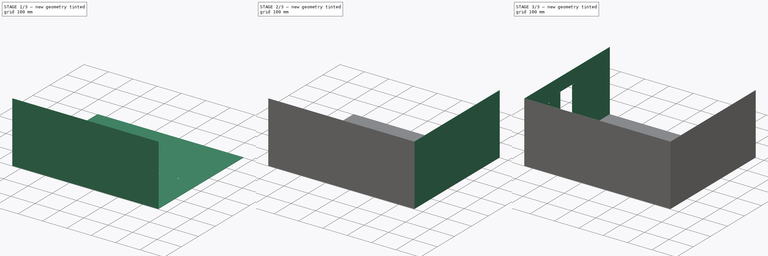
[diagram: build sequence overview — one tinted view per stage of 3, left to right]
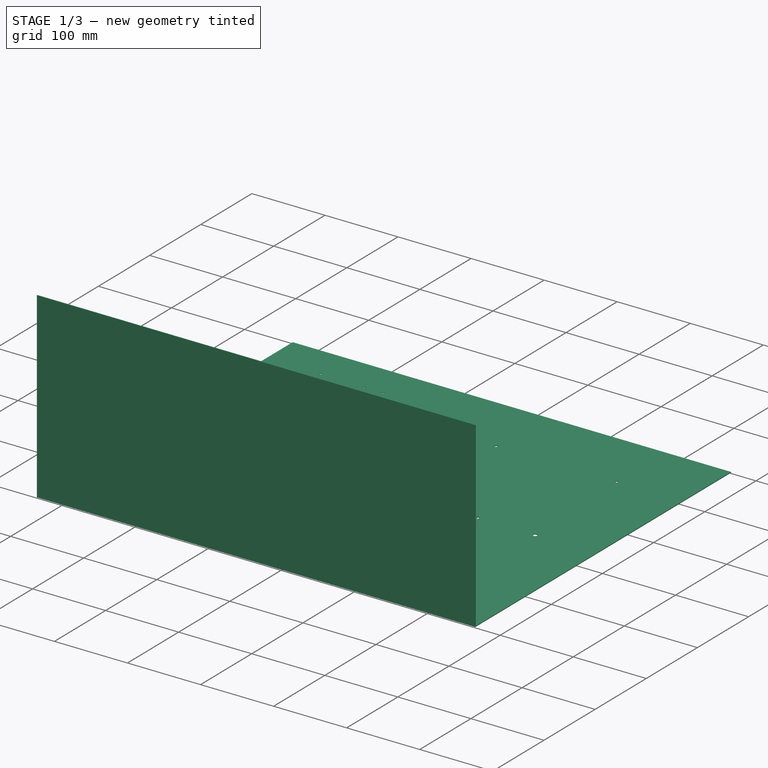
[diagram: stage 1 of 3 — iso view after this stage's code; geometry added in this stage tinted green]
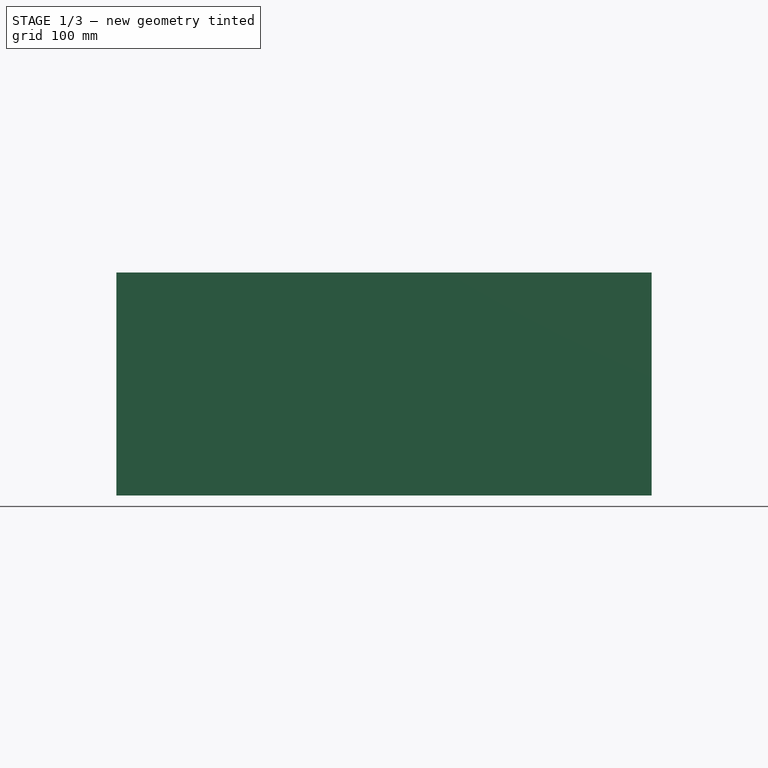
[diagram: stage 1 of 3 — front view after this stage's code; geometry added in this stage tinted green]
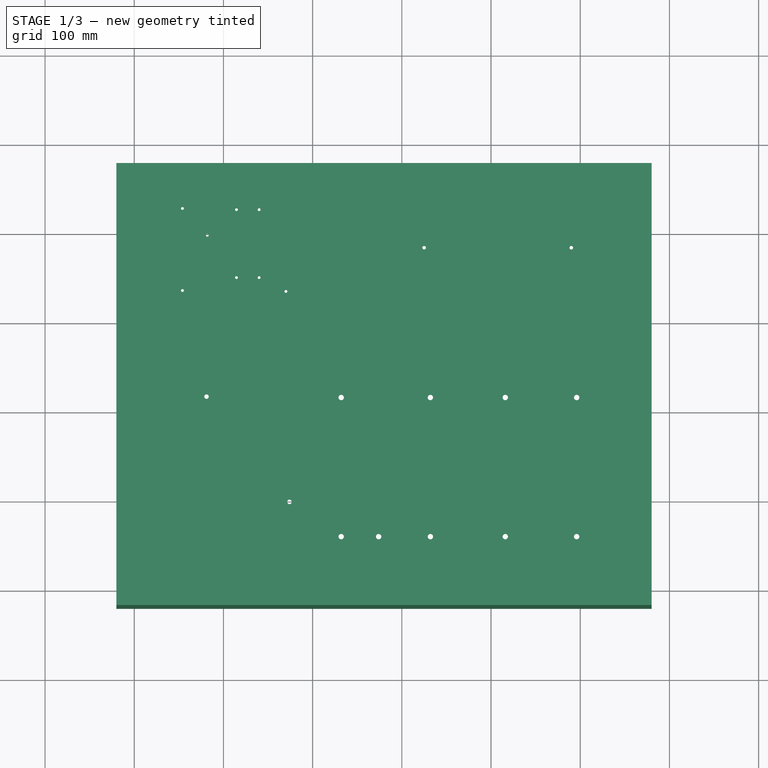
[diagram: stage 1 of 3 — top view after this stage's code; geometry added in this stage tinted green]
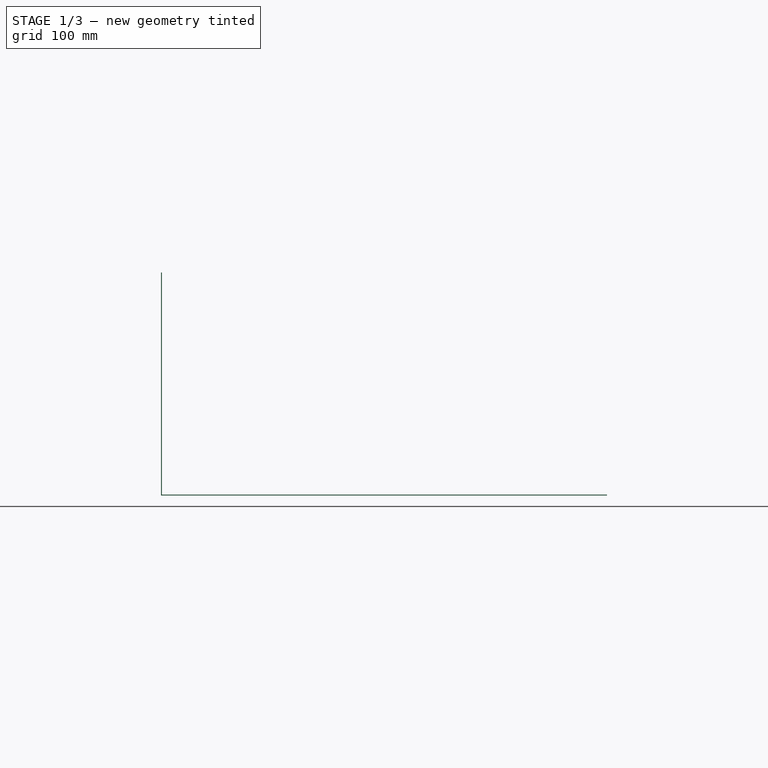
[diagram: stage 1 of 3 — right view after this stage's code; geometry added in this stage tinted green]
FCSTD DOCUMENT  (FreeCAD 0.16R6707 (Git))
Label: Box
License: All rights reserved
LicenseURL: http://en.wikipedia.org/wiki/All_rights_reserved
objects: Sketcher::SketchObject×5, PartDesign::Pad×5
note: 15 computed .brp shape members not serialized (recipe doc carries the construction recipe); baked Part::Feature solids carry a one-line shape summary decoded from their .brp

FEATURE [Sketcher::SketchObject] Sketch  label="Back panel sketch"
  sketch-geometry (79):
    g0: LineSegment [constr] StartX=75 StartY=223 StartZ=0 EndX=180 EndY=223 EndZ=0
    g1: LineSegment [constr] StartX=180 StartY=223 StartZ=0 EndX=180 EndY=93 EndZ=0
    g2: LineSegment [constr] StartX=180 StartY=93 StartZ=0 EndX=75 EndY=93 EndZ=0
    g3: LineSegment [constr] StartX=75 StartY=93 StartZ=0 EndX=75 EndY=223 EndZ=0
    g4: LineSegment [constr] StartX=210 StartY=223 StartZ=0 EndX=280 EndY=223 EndZ=0
    g5: LineSegment [constr] StartX=280 StartY=223 StartZ=0 EndX=280 EndY=55 EndZ=0
    g6: LineSegment [constr] StartX=280 StartY=55 StartZ=0 EndX=210 EndY=55 EndZ=0
    g7: LineSegment [constr] StartX=210 StartY=55 StartZ=0 EndX=210 EndY=223 EndZ=0
    g8: Circle CenterX=81 CenterY=218 CenterZ=0 NormalX=0 NormalY=0 NormalZ=1 Radius=2.5
    g9: Circle CenterX=174 CenterY=100 CenterZ=0 NormalX=0 NormalY=0 NormalZ=1 Radius=2.5
    g10: Circle CenterX=232 CenterY=217 CenterZ=0 NormalX=0 NormalY=0 NormalZ=1 Radius=3
    g11: Circle CenterX=232 CenterY=61 CenterZ=0 NormalX=0 NormalY=0 NormalZ=1 Radius=3
    g12: Circle CenterX=274 CenterY=61 CenterZ=0 NormalX=0 NormalY=0 NormalZ=1 Radius=3
    g13: LineSegment [constr] StartX=310 StartY=223 StartZ=0 EndX=380 EndY=223 EndZ=0
    g14: LineSegment [constr] StartX=380 StartY=223 StartZ=0 EndX=380 EndY=55 EndZ=0
    g15: LineSegment [constr] StartX=380 StartY=55 StartZ=0 EndX=310 EndY=55 EndZ=0
    g16: LineSegment [constr] StartX=310 StartY=55 StartZ=0 EndX=310 EndY=223 EndZ=0
    g17: Circle CenterX=332 CenterY=217 CenterZ=0 NormalX=0 NormalY=0 NormalZ=1 Radius=3
    g18: Circle CenterX=332 CenterY=61 CenterZ=0 NormalX=0 NormalY=0 NormalZ=1 Radius=3
    g19: LineSegment [constr] StartX=410 StartY=223 StartZ=0 EndX=460 EndY=223 EndZ=0
    g20: LineSegment [constr] StartX=460 StartY=223 StartZ=0 EndX=460 EndY=55 EndZ=0
    g21: LineSegment [constr] StartX=460 StartY=55 StartZ=0 EndX=410 EndY=55 EndZ=0
    g22: LineSegment [constr] StartX=410 StartY=55 StartZ=0 EndX=410 EndY=223 EndZ=0
    g23: Circle CenterX=416 CenterY=217 CenterZ=0 NormalX=0 NormalY=0 NormalZ=1 Radius=3
    g24: Circle CenterX=416 CenterY=61 CenterZ=0 NormalX=0 NormalY=0 NormalZ=1 Radius=3
    g25: LineSegment [constr] StartX=0 StartY=460 StartZ=0 EndX=560 EndY=460 EndZ=0
    g26: LineSegment [constr] StartX=560 StartY=460 StartZ=0 EndX=560 EndY=0 EndZ=0
    g27: LineSegment [constr] StartX=560 StartY=0 StartZ=0 EndX=0 EndY=0 EndZ=0
    g28: LineSegment [constr] StartX=0 StartY=0 StartZ=0 EndX=0 EndY=460 EndZ=0
    g29: LineSegment [constr] StartX=0 StartY=290 StartZ=0 EndX=560 EndY=290 EndZ=0
    g30: LineSegment [constr] StartX=220 StartY=460 StartZ=0 EndX=220 EndY=290 EndZ=0
    g31: LineSegment [constr] StartX=-20 StartY=130 StartZ=0 EndX=18 EndY=130 EndZ=0
    g32: LineSegment [constr] StartX=18 StartY=130 StartZ=0 EndX=18 EndY=10 EndZ=0
    g33: LineSegment [constr] StartX=18 StartY=10 StartZ=0 EndX=-20 EndY=10 EndZ=0
    g34: LineSegment [constr] StartX=-20 StartY=10 StartZ=0 EndX=-20 EndY=130 EndZ=0
    g35: LineSegment [constr] StartX=50 StartY=438 StartZ=0 EndX=175 EndY=438 EndZ=0
    g36: LineSegment [constr] StartX=175 StartY=438 StartZ=0 EndX=175 EndY=331 EndZ=0
    g37: LineSegment [constr] StartX=175 StartY=331 StartZ=0 EndX=50 EndY=331 EndZ=0
    g38: LineSegment [constr] StartX=50 StartY=331 StartZ=0 EndX=50 EndY=438 EndZ=0
    g39: LineSegment [constr] StartX=325 StartY=430 StartZ=0 EndX=490 EndY=430 EndZ=0
    g40: LineSegment [constr] StartX=490 StartY=430 StartZ=0 EndX=490 EndY=340 EndZ=0
    g41: LineSegment [constr] StartX=490 StartY=340 StartZ=0 EndX=325 EndY=340 EndZ=0
    g42: LineSegment [constr] StartX=325 StartY=340 StartZ=0 EndX=325 EndY=430 EndZ=0
    g43: LineSegment StartX=-20 StartY=480 StartZ=0 EndX=580 EndY=480 EndZ=0
    g44: LineSegment StartX=580 StartY=480 StartZ=0 EndX=580 EndY=460 EndZ=0
    g45: LineSegment StartX=-20 StartY=460 StartZ=0 EndX=-20 EndY=480 EndZ=0
    g46: LineSegment StartX=-20 StartY=-20 StartZ=0 EndX=580 EndY=-20 EndZ=0
    g47: LineSegment StartX=580 StartY=-20 StartZ=0 EndX=580 EndY=0 EndZ=0
    g48: LineSegment StartX=-20 StartY=0 StartZ=0 EndX=-20 EndY=-20 EndZ=0
    g49: LineSegment [constr] StartX=560 StartY=460 StartZ=0 EndX=580 EndY=460 EndZ=0
    g50: LineSegment StartX=580 StartY=460 StartZ=0 EndX=580 EndY=0 EndZ=0
    g51: LineSegment [constr] StartX=580 StartY=0 StartZ=0 EndX=560 EndY=0 EndZ=0
    g52: LineSegment [constr] StartX=-20 StartY=460 StartZ=0 EndX=0 EndY=460 EndZ=0
    g53: LineSegment [constr] StartX=0 StartY=0 StartZ=0 EndX=-20 EndY=0 EndZ=0
    g54: LineSegment StartX=-20 StartY=0 StartZ=0 EndX=-20 EndY=460 EndZ=0
    g55: LineSegment [constr] StartX=490 StartY=223 StartZ=0 EndX=540 EndY=223 EndZ=0
    g56: LineSegment [constr] StartX=540 StartY=223 StartZ=0 EndX=540 EndY=55 EndZ=0
    g57: LineSegment [constr] StartX=540 StartY=55 StartZ=0 EndX=490 EndY=55 EndZ=0
    g58: LineSegment [constr] StartX=490 StartY=55 StartZ=0 EndX=490 EndY=223 EndZ=0
    g59: Circle CenterX=496 CenterY=217 CenterZ=0 NormalX=0 NormalY=0 NormalZ=1 Radius=3
    g60: Circle CenterX=496 CenterY=61 CenterZ=0 NormalX=0 NormalY=0 NormalZ=1 Radius=3
    g61: ArcOfCircle [constr] CenterX=18 CenterY=67.5946 CenterZ=0 NormalX=0 NormalY=0 NormalZ=1 Radius=62.4054 StartAngle=0.41928 EndAngle=1.5708
    g62: Circle CenterX=170 CenterY=336 CenterZ=0 NormalX=0 NormalY=0 NormalZ=1 Radius=1.6
    g63: Circle CenterX=54 CenterY=337 CenterZ=0 NormalX=0 NormalY=0 NormalZ=1 Radius=1.6
    g64: Circle CenterX=54 CenterY=429 CenterZ=0 NormalX=0 NormalY=0 NormalZ=1 Radius=1.6
    g65: Circle CenterX=82 CenterY=399 CenterZ=0 NormalX=0 NormalY=0 NormalZ=1 Radius=1.6
    g66: LineSegment [constr] StartX=220 StartY=440 StartZ=0 EndX=260 EndY=440 EndZ=0
    g67: LineSegment [constr] StartX=260 StartY=440 StartZ=0 EndX=260 EndY=325 EndZ=0
    g68: LineSegment [constr] StartX=260 StartY=325 StartZ=0 EndX=220 EndY=325 EndZ=0
    g69: Circle CenterX=490 CenterY=385 CenterZ=0 NormalX=0 NormalY=0 NormalZ=1 Radius=2
    g70: Circle CenterX=325 CenterY=385 CenterZ=0 NormalX=0 NormalY=0 NormalZ=1 Radius=2
    g71: LineSegment [constr] StartX=114.6 StartY=427.68 StartZ=0 EndX=140 EndY=427.68 EndZ=0
    g72: LineSegment [constr] StartX=140 StartY=427.68 StartZ=0 EndX=140 EndY=351.48 EndZ=0
    g73: LineSegment [constr] StartX=140 StartY=351.48 StartZ=0 EndX=114.6 EndY=351.48 EndZ=0
    g74: LineSegment [constr] StartX=114.6 StartY=351.48 StartZ=0 EndX=114.6 EndY=427.68 EndZ=0
    g75: Circle CenterX=114.6 CenterY=427.68 CenterZ=0 NormalX=0 NormalY=0 NormalZ=1 Radius=1.6
    g76: Circle CenterX=140 CenterY=427.68 CenterZ=0 NormalX=0 NormalY=0 NormalZ=1 Radius=1.6
    g77: Circle CenterX=114.6 CenterY=351.48 CenterZ=0 NormalX=0 NormalY=0 NormalZ=1 Radius=1.6
    g78: Circle CenterX=140 CenterY=351.48 CenterZ=0 NormalX=0 NormalY=0 NormalZ=1 Radius=1.6
  constraints (231):
    c: Coincident(g0,g1)
    c: Coincident(g1,g2)
    c: Coincident(g2,g3)
    c: Coincident(g3,g0)
    c: Horizontal(g0)
    c: Horizontal(g2)
    c: Vertical(g1)
    c: Vertical(g3)
    c: Coincident(g4,g5)
    c: Coincident(g5,g6)
    c: Coincident(g6,g7)
    c: Coincident(g7,g4)
    c: Horizontal(g4)
    c: Horizontal(g6)
    c: Vertical(g5)
    c: Vertical(g7)
    c: DistanceX(g0,g0) = 105
    c: DistanceY(g2,g0) = 130
    c: Radius(g8) = 2.5
    c: Equal(g8,g9)
    c: DistanceX(g8,g9) = 93
    c: DistanceY(g9,g8) = 118
    c: DistanceY(g8,g0) = 5
    c: DistanceX(g9,g1) = 6
    c: DistanceX(g4,g4) = 70
    c: DistanceY(g6,g4) = 168
    c: Radius(g10) = 3
    c: Equal(g10,g11)
    c: Equal(g10,g12)
    c: DistanceX(g4,g10) = 22
    c: DistanceY(g10,g4) = 6
    c: DistanceX(g6,g11) = 22
    c: DistanceX(g11,g12) = 42
    c: DistanceY(g5,g12) = 6
    c: DistanceY(g6,g11) = 6
    c: Coincident(g13,g14)
    c: Coincident(g14,g15)
    c: Coincident(g15,g16)
    c: Coincident(g16,g13)
    c: Horizontal(g13)
    c: Horizontal(g15)
    c: Vertical(g14)
    c: Vertical(g16)
    c: Equal(g4,g13) = 70
    c: DistanceY(g15,g13) = 168
    c: Equal(g10,g17) = 3
    c: Equal(g17,g18)
    c: DistanceX(g13,g17) = 22
    c: DistanceY(g17,g13) = 6
    c: DistanceX(g15,g18) = 22
    c: DistanceY(g15,g18) = 6
    c: Coincident(g19,g20)
    c: Coincident(g20,g21)
    c: Coincident(g21,g22)
    c: Coincident(g22,g19)
    c: Horizontal(g19)
    c: Horizontal(g21)
    c: Vertical(g20)
    c: Vertical(g22)
    c: DistanceY(g21,g19) = 168
    c: Equal(g23,g24)
    c: DistanceX(g19,g23) = 6
    c: DistanceY(g23,g19) = 6
    c: DistanceX(g21,g24) = 6
    c: DistanceY(g21,g24) = 6
    c: DistanceX(g19,g19) = 50
    c: Coincident(g25,g26)
    c: Coincident(g26,g27)
    c: Coincident(g27,g28)
    c: Coincident(g28,g25)
    c: Horizontal(g25)
    c: Horizontal(g27)
    c: Vertical(g26)
    c: Vertical(g28)
    c: PointOnObject(g29,g28)
    c: PointOnObject(g29,g26)
    c: Horizontal(g29)
    c: PointOnObject(g30,g25)
    c: PointOnObject(g30,g29)
    c: Vertical(g30)
    c: Coincident(g31,g32)
    c: Coincident(g32,g33)
    c: Coincident(g33,g34)
    c: Coincident(g34,g31)
    c: Horizontal(g31)
    c: Horizontal(g33)
    c: Vertical(g32)
    c: Vertical(g34)
    c: DistanceX(g31,g31) = 38
    c: DistanceY(g32,g32) = 120
    c: DistanceX(g4,g13) = 30
    c: DistanceX(g13,g19) = 30
    c: DistanceX(g0,g4) = 30
    c: Coincident(g27,g-1)
    c: Coincident(g35,g36)
    c: Coincident(g36,g37)
    c: Coincident(g37,g38)
    c: Coincident(g38,g35)
    c: Horizontal(g35)
    c: Horizontal(g37)
    c: Vertical(g36)
    c: Vertical(g38)
    c: DistanceY(g36,g36) = 107
    c: DistanceX(g37,g37) = 125
    c: Coincident(g39,g40)
    c: Coincident(g40,g41)
    c: Coincident(g41,g42)
    c: Coincident(g42,g39)
    c: Horizontal(g39)
    c: Horizontal(g41)
    c: Vertical(g40)
    c: Vertical(g42)
    c: DistanceY(g40,g40) = 90
    c: DistanceX(g39,g39) = 165
    c: DistanceY(g35,g25) = 22
    c: DistanceX(g25,g35) = 50
    c: DistanceX(g39,g25) = 70
    c: DistanceY(g39,g25) = 30
    c: Coincident(g43,g44)
    c: Coincident(g45,g43)
    c: Horizontal(g43)
    c: Vertical(g44)
    c: Vertical(g45)
    c: PointOnObject(g44,g25)
    c: Coincident(g46,g47)
    c: Coincident(g48,g46)
    c: Horizontal(g46)
    c: Vertical(g47)
    c: Vertical(g48)
    c: PointOnObject(g47,g27)
    c: Coincident(g49,g50)
    c: Coincident(g50,g51)
    c: Horizontal(g49)
    c: Horizontal(g51)
    c: Vertical(g50)
    c: Coincident(g49,g25)
    c: Coincident(g50,g47)
    c: Coincident(g44,g49)
    c: Coincident(g53,g54)
    c: Coincident(g54,g52)
    c: Horizontal(g52)
    c: Horizontal(g53)
    c: Vertical(g54)
    c: Coincident(g53,g48)
    c: DistanceX(g49,g49) = 20
    c: DistanceY(g44,g44) = 20
    c: DistanceX(g52,g52) = 20
    c: DistanceY(g48,g48) = 20
    c: Coincident(g53,g-1)
    c: Coincident(g51,g26)
    c: Coincident(g45,g52)
    c: Coincident(g52,g25)
    c: DistanceX(g43,g43) = 600
    c: DistanceY(g54,g54) = 460
    c: PointOnObject(g31,g54)
    c: DistanceY(g5,g15) = 0
    c: DistanceY(g14,g21) = 0
    c: DistanceY(g46,g20) = 75
    c: DistanceY(g4,g0) = 0
    c: DistanceY(g48,g33) = 10
    c: Coincident(g55,g56)
    c: Coincident(g56,g57)
    c: Coincident(g57,g58)
    c: Coincident(g58,g55)
    c: Horizontal(g55)
    c: Horizontal(g57)
    c: Vertical(g56)
    c: Vertical(g58)
    c: DistanceY(g57,g55) = 168
    c: Equal(g59,g60)
    c: DistanceX(g55,g59) = 6
    c: DistanceY(g59,g55) = 6
    c: DistanceX(g57,g60) = 6
    c: DistanceY(g57,g60) = 6
    c: Equal(g19,g55) = 50
    c: DistanceX(g19,g55) = 30
    c: DistanceY(g57,g20) = 0
    c: DistanceX(g56,g26) = 20
    c: DistanceX(g43,g30) = 240
    c: PointOnObject(g61,g32)
    c: Coincident(g61,g31)
    c: Coincident(g61,g2)
    c: Radius(g64) = 1.6
    c: Equal(g64,g65)
    c: Equal(g64,g63)
    c: Equal(g64,g62)
    c: DistanceY(g36,g62) = 5
    c: DistanceX(g62,g36) = 5
    c: DistanceY(g37,g63) = 6
    c: DistanceX(g37,g63) = 4
    c: DistanceX(g35,g64) = 4
    c: DistanceY(g64,g35) = 9
    c: DistanceY(g65,g35) = 39
    c: DistanceX(g35,g65) = 32
    c: PointOnObject(g66,g30)
    c: Horizontal(g66)
    c: Coincident(g67,g66)
    c: Vertical(g67)
    c: Coincident(g68,g67)
    c: PointOnObject(g68,g30)
    c: Horizontal(g68)
    c: DistanceX(g66,g66) = 40
    c: DistanceY(g67,g67) = 115
    c: DistanceY(g66,g30) = 20
    c: DistanceY(g29,g43) = 190
    c: PointOnObject(g69,g40)
    c: PointOnObject(g70,g42)
    c: DistanceY(g41,g70) = 45
    c: DistanceY(g40,g69) = 45
    c: Radius(g70) = 2
    c: Equal(g70,g69)
    c: Coincident(g71,g72)
    c: Coincident(g72,g73)
    c: Coincident(g73,g74)
    c: Coincident(g74,g71)
    c: Horizontal(g71)
    c: Horizontal(g73)
    c: Vertical(g72)
    c: Vertical(g74)
    c: DistanceY(g74,g74) = 76.2
    c: DistanceX(g71,g71) = 25.4
    c: DistanceX(g71,g35) = 35
    c: Coincident(g75,g71)
    c: Coincident(g76,g71)
    c: Coincident(g77,g73)
    c: Coincident(g78,g72)
    c: Radius(g78) = 1.6
    c: Equal(g78,g77)
    c: Equal(g78,g75)
    c: Equal(g78,g76)
    c: DistanceY(g36,g72) = 20.48
FEATURE [PartDesign::Pad] Pad
  Length = 1
  Length2 = 100
  Sketch = -> Sketch
  Type = 0
FEATURE [Sketcher::SketchObject] Sketch001  label="Bottom panel sketch"
  ExternalGeometry = -> [Pad]
  Placement = pos=(0,-20,0) rot=(1,0,0;1.5708rad)
  Support = -> Pad [Face7]
  sketch-geometry (4):
    g0: LineSegment StartX=-20 StartY=250 StartZ=0 EndX=580 EndY=250 EndZ=0
    g1: LineSegment StartX=580 StartY=250 StartZ=0 EndX=580 EndY=0 EndZ=0
    g2: LineSegment StartX=580 StartY=0 StartZ=0 EndX=-20 EndY=0 EndZ=0
    g3: LineSegment StartX=-20 StartY=0 StartZ=0 EndX=-20 EndY=250 EndZ=0
  constraints (11):
    c: Coincident(g0,g1)
    c: Coincident(g1,g2)
    c: Coincident(g2,g3)
    c: Coincident(g3,g0)
    c: Horizontal(g0)
    c: Horizontal(g2)
    c: Vertical(g1)
    c: Vertical(g3)
    c: Coincident(g2,g-3)
    c: Coincident(g1,g-3)
    c: DistanceY(g3,g3) = 250
FEATURE [PartDesign::Pad] Pad001
  Length = 1
  Length2 = 100
  Reversed = true
  Sketch = -> Sketch001
  Type = 0
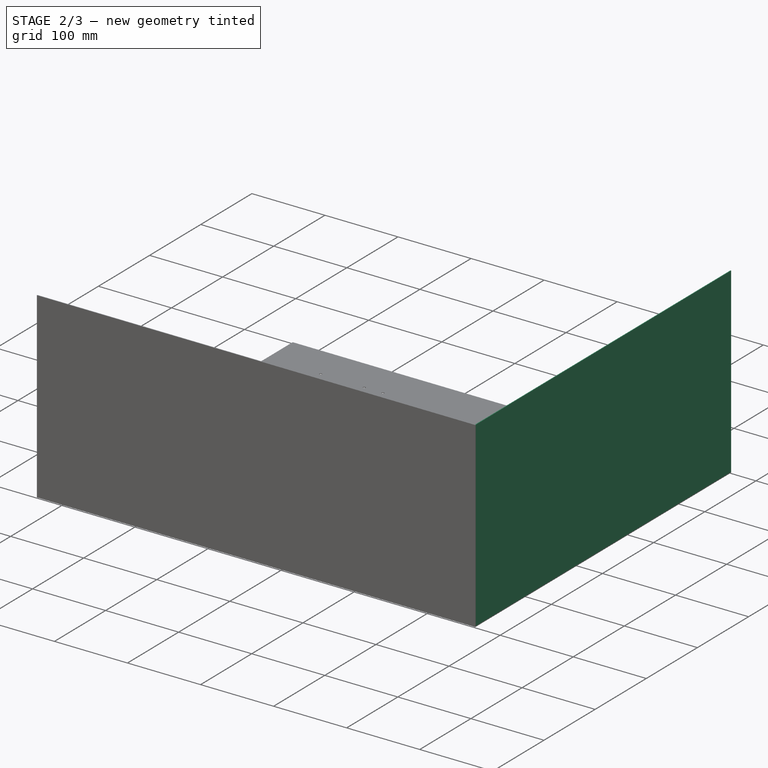
[diagram: stage 2 of 3 — iso view after this stage's code; geometry added in this stage tinted green]
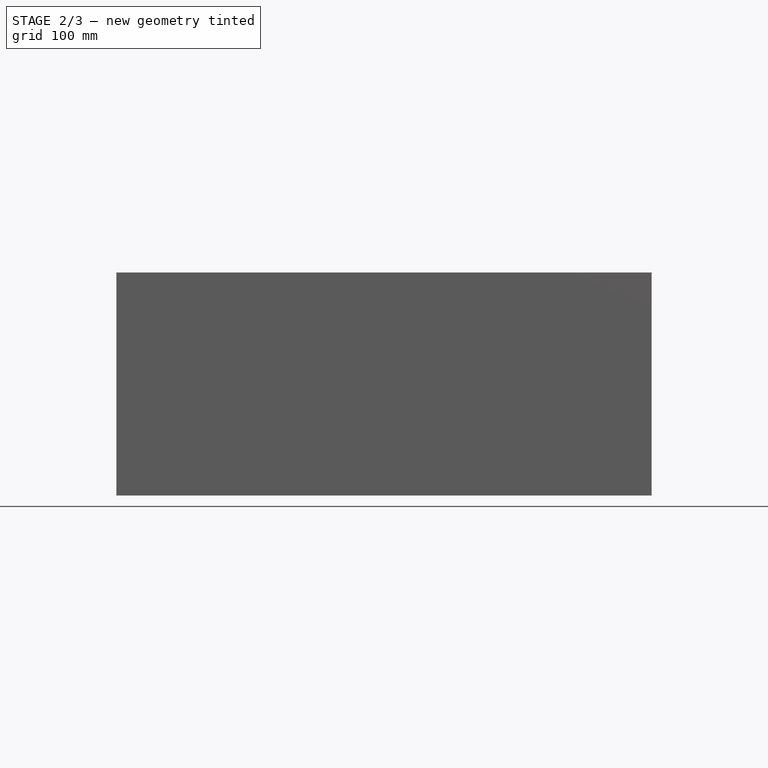
[diagram: stage 2 of 3 — front view after this stage's code; geometry added in this stage tinted green]
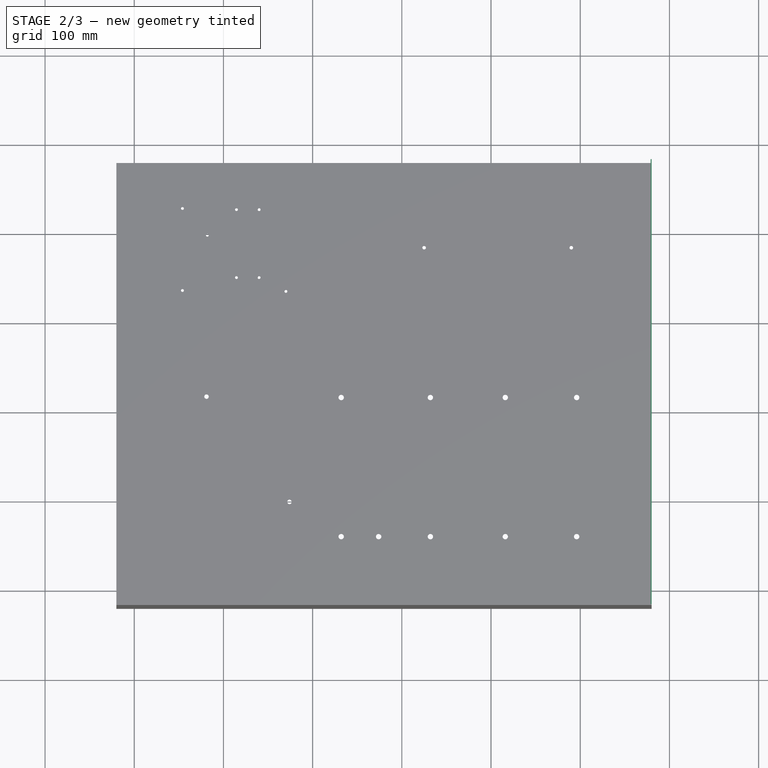
[diagram: stage 2 of 3 — top view after this stage's code; geometry added in this stage tinted green]
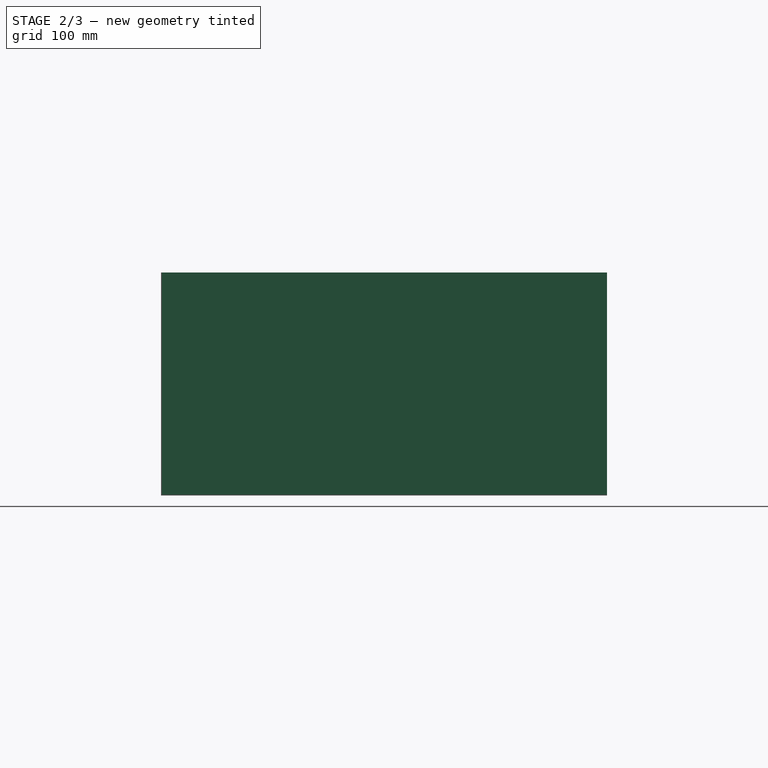
[diagram: stage 2 of 3 — right view after this stage's code; geometry added in this stage tinted green]
FEATURE [Sketcher::SketchObject] Sketch002  label="Right panel sketch"
  ExternalGeometry = -> [Pad001]
  Placement = pos=(580,0,0) rot=(0.57735,0.57735,0.57735;2.0944rad)
  Support = -> Pad001 [Face10]
  sketch-geometry (4):
    g0: LineSegment StartX=-20 StartY=250 StartZ=0 EndX=480 EndY=250 EndZ=0
    g1: LineSegment StartX=480 StartY=250 StartZ=0 EndX=480 EndY=0 EndZ=0
    g2: LineSegment StartX=480 StartY=0 StartZ=0 EndX=-20 EndY=0 EndZ=0
    g3: LineSegment StartX=-20 StartY=0 StartZ=0 EndX=-20 EndY=250 EndZ=0
FEATURE [PartDesign::Pad] Pad002
  Length = 1
  Length2 = 100
  Reversed = true
  Sketch = -> Sketch002
  Type = 0
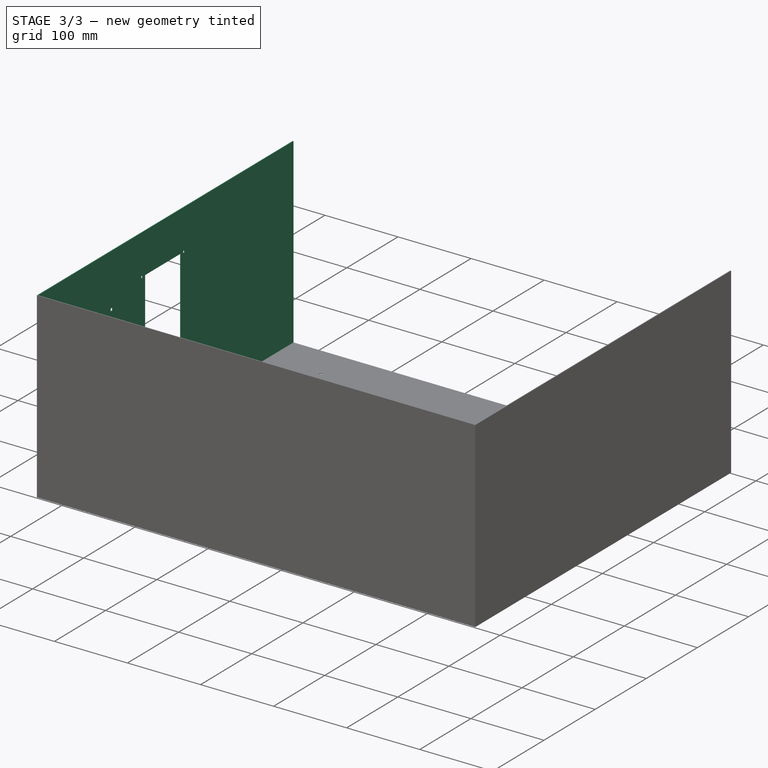
[diagram: stage 3 of 3 — iso view after this stage's code; geometry added in this stage tinted green]
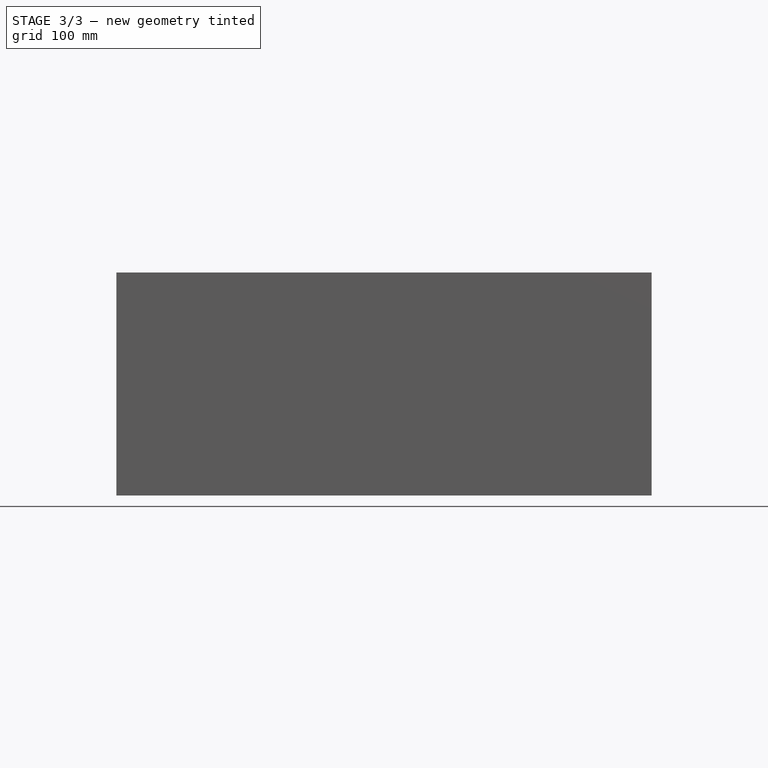
[diagram: stage 3 of 3 — front view after this stage's code; geometry added in this stage tinted green]
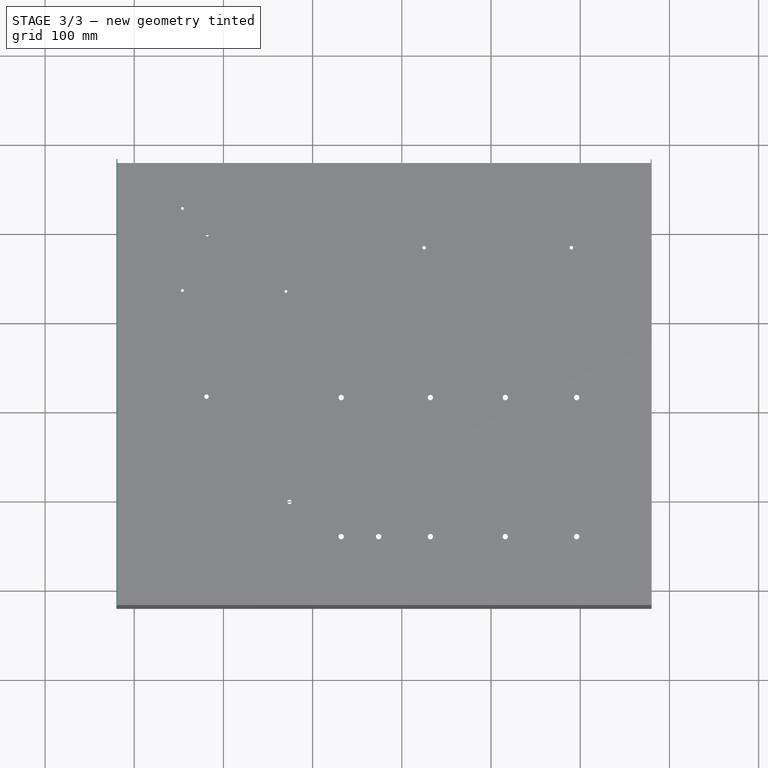
[diagram: stage 3 of 3 — top view after this stage's code; geometry added in this stage tinted green]
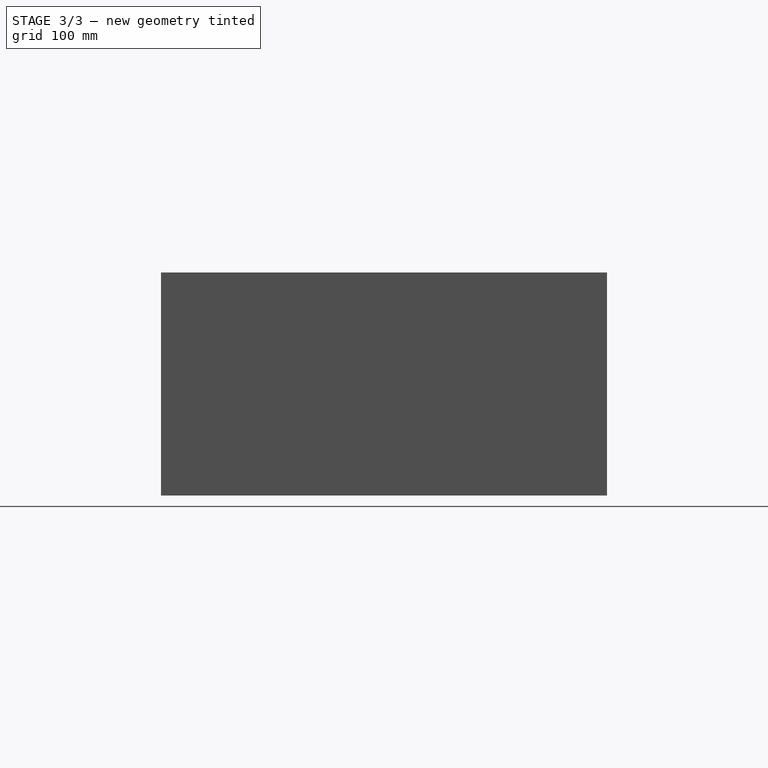
[diagram: stage 3 of 3 — right view after this stage's code; geometry added in this stage tinted green]
FEATURE [Sketcher::SketchObject] Sketch003  label="Left panel sketch"
  ExternalGeometry = -> [Pad002]
  Placement = pos=(-20,0,0) rot=(0.57735,-0.57735,-0.57735;2.0944rad)
  Support = -> Pad002 [Face1]
  sketch-geometry (63):
    g0: LineSegment StartX=20 StartY=0 StartZ=0 EndX=520 EndY=0 EndZ=0
    g1: LineSegment StartX=520 StartY=0 StartZ=0 EndX=520 EndY=-250 EndZ=0
    g2: LineSegment StartX=520 StartY=-250 StartZ=0 EndX=20 EndY=-250 EndZ=0
    g3: LineSegment StartX=20 StartY=-250 StartZ=0 EndX=20 EndY=0 EndZ=0
    g4: LineSegment [constr] StartX=40 StartY=-20 StartZ=0 EndX=500 EndY=-20 EndZ=0
    g5: LineSegment [constr] StartX=500 StartY=-20 StartZ=0 EndX=500 EndY=-230 EndZ=0
    g6: LineSegment [constr] StartX=500 StartY=-230 StartZ=0 EndX=40 EndY=-230 EndZ=0
    g7: LineSegment [constr] StartX=40 StartY=-230 StartZ=0 EndX=40 EndY=-20 EndZ=0
    g8: LineSegment [constr] StartX=375.2 StartY=-72.6 StartZ=0 EndX=480 EndY=-72.6 EndZ=0
    g9: LineSegment [constr] StartX=480 StartY=-72.6 StartZ=0 EndX=480 EndY=-177.4 EndZ=0
    g10: LineSegment [constr] StartX=480 StartY=-177.4 StartZ=0 EndX=375.2 EndY=-177.4 EndZ=0
    g11: LineSegment [constr] StartX=375.2 StartY=-177.4 StartZ=0 EndX=375.2 EndY=-72.6 EndZ=0
    g12: Circle CenterX=480 CenterY=-72.6 CenterZ=0 NormalX=0 NormalY=0 NormalZ=1 Radius=2.1
    g13: Circle CenterX=375.2 CenterY=-72.6 CenterZ=0 NormalX=0 NormalY=0 NormalZ=1 Radius=2.1
    g14: Circle CenterX=480 CenterY=-177.4 CenterZ=0 NormalX=0 NormalY=0 NormalZ=1 Radius=2.1
    g15: Circle CenterX=375.2 CenterY=-177.4 CenterZ=0 NormalX=0 NormalY=0 NormalZ=1 Radius=2.1
    g16: LineSegment [constr] StartX=480 StartY=-177.4 StartZ=0 EndX=480 EndY=-230 EndZ=0
    g17: LineSegment [constr] StartX=480 StartY=-72.6 StartZ=0 EndX=480 EndY=-20 EndZ=0
    g18: LineSegment StartX=486.6 StartY=-149.439 StartZ=0 EndX=486.6 EndY=-100.561 EndZ=0
    g19: LineSegment StartX=486.6 StartY=-100.561 StartZ=0 EndX=452.039 EndY=-66 EndZ=0
    g20: LineSegment StartX=452.039 StartY=-66 StartZ=0 EndX=403.161 EndY=-66 EndZ=0
    g21: LineSegment StartX=403.161 StartY=-66 StartZ=0 EndX=368.6 EndY=-100.561 EndZ=0
    g22: LineSegment StartX=368.6 StartY=-100.561 StartZ=0 EndX=368.6 EndY=-149.439 EndZ=0
    g23: LineSegment StartX=368.6 StartY=-149.439 StartZ=0 EndX=403.161 EndY=-184 EndZ=0
    g24: LineSegment StartX=403.161 StartY=-184 StartZ=0 EndX=452.039 EndY=-184 EndZ=0
    g25: LineSegment StartX=452.039 StartY=-184 StartZ=0 EndX=486.6 EndY=-149.439 EndZ=0
    g26: Circle [constr] CenterX=427.6 CenterY=-125 CenterZ=0 NormalX=0 NormalY=0 NormalZ=1 Radius=63.8611
    g27: Circle [constr] CenterX=427.6 CenterY=-125 CenterZ=0 NormalX=0 NormalY=0 NormalZ=1 Radius=59
    g28: LineSegment [constr] StartX=375.2 StartY=-72.6 StartZ=0 EndX=385.881 EndY=-83.2807 EndZ=0
    g29: LineSegment [constr] StartX=469.319 StartY=-166.719 StartZ=0 EndX=480 EndY=-177.4 EndZ=0
    g30: LineSegment [constr] StartX=375.2 StartY=-177.4 StartZ=0 EndX=385.881 EndY=-166.719 EndZ=0
    g31: LineSegment [constr] StartX=480 StartY=-72.6 StartZ=0 EndX=469.319 EndY=-83.2807 EndZ=0
    g32: LineSegment [constr] StartX=210 StartY=0 StartZ=0 EndX=210 EndY=-250 EndZ=0
    g33: LineSegment StartX=255 StartY=-65 StartZ=0 EndX=315 EndY=-65 EndZ=0
    g34: LineSegment StartX=315 StartY=-65 StartZ=0 EndX=315 EndY=-185 EndZ=0
    g35: LineSegment StartX=315 StartY=-185 StartZ=0 EndX=255 EndY=-185 EndZ=0
    g36: LineSegment StartX=255 StartY=-185 StartZ=0 EndX=255 EndY=-65 EndZ=0
    g37: Circle CenterX=320 CenterY=-65 CenterZ=0 NormalX=0 NormalY=0 NormalZ=1 Radius=1.6
    g38: Circle CenterX=320 CenterY=-185 CenterZ=0 NormalX=0 NormalY=0 NormalZ=1 Radius=1.6
    g39: Circle CenterX=250 CenterY=-185 CenterZ=0 NormalX=0 NormalY=0 NormalZ=1 Radius=1.6
    g40: Circle CenterX=250 CenterY=-65 CenterZ=0 NormalX=0 NormalY=0 NormalZ=1 Radius=1.6
    g41: LineSegment [constr] StartX=255 StartY=-185 StartZ=0 EndX=250 EndY=-185 EndZ=0
    g42: LineSegment [constr] StartX=315 StartY=-185 StartZ=0 EndX=320 EndY=-185 EndZ=0
    g43: LineSegment [constr] StartX=315 StartY=-65 StartZ=0 EndX=320 EndY=-65 EndZ=0
    g44: LineSegment [constr] StartX=255 StartY=-65 StartZ=0 EndX=250 EndY=-65 EndZ=0
    g45: LineSegment [constr] StartX=315 StartY=-65 StartZ=0 EndX=315 EndY=-20 EndZ=0
    g46: LineSegment [constr] StartX=315 StartY=-185 StartZ=0 EndX=315 EndY=-230 EndZ=0
    g47: LineSegment StartX=85 StartY=-65 StartZ=0 EndX=145 EndY=-65 EndZ=0
    g48: LineSegment StartX=145 StartY=-65 StartZ=0 EndX=145 EndY=-185 EndZ=0
    g49: LineSegment StartX=145 StartY=-185 StartZ=0 EndX=85 EndY=-185 EndZ=0
    g50: LineSegment StartX=85 StartY=-185 StartZ=0 EndX=85 EndY=-65 EndZ=0
    g51: Circle CenterX=150 CenterY=-65 CenterZ=0 NormalX=0 NormalY=0 NormalZ=1 Radius=1.6
    g52: Circle CenterX=150 CenterY=-185 CenterZ=0 NormalX=0 NormalY=0 NormalZ=1 Radius=1.6
    g53: Circle CenterX=80 CenterY=-185 CenterZ=0 NormalX=0 NormalY=0 NormalZ=1 Radius=1.6
    g54: Circle CenterX=80 CenterY=-65 CenterZ=0 NormalX=0 NormalY=0 NormalZ=1 Radius=1.6
    g55: LineSegment [constr] StartX=85 StartY=-185 StartZ=0 EndX=80 EndY=-185 EndZ=0
    g56: LineSegment [constr] StartX=145 StartY=-185 StartZ=0 EndX=150 EndY=-185 EndZ=0
    g57: LineSegment [constr] StartX=145 StartY=-65 StartZ=0 EndX=150 EndY=-65 EndZ=0
    g58: LineSegment [constr] StartX=85 StartY=-65 StartZ=0 EndX=80 EndY=-65 EndZ=0
    g59: LineSegment [constr] StartX=145 StartY=-65 StartZ=0 EndX=145 EndY=-20 EndZ=0
    g60: LineSegment [constr] StartX=145 StartY=-185 StartZ=0 EndX=145 EndY=-230 EndZ=0
    g61: LineSegment [constr] StartX=150 StartY=-65 StartZ=0 EndX=210 EndY=-65 EndZ=0
    g62: LineSegment [constr] StartX=80 StartY=-65 StartZ=0 EndX=20 EndY=-65 EndZ=0
  constraints (176):
    c: DistanceY(g1,g1) = 250
    c: DistanceX(g0,g0) = 500
    c: Coincident(g0,g1)
    c: Coincident(g1,g2)
    c: Coincident(g0,g3)
    c: Coincident(g0,g-3)
    c: Horizontal(g0)
    c: Vertical(g1)
    c: Coincident(g4,g5)
    c: Coincident(g4,g7)
    c: Coincident(g6,g7)
    c: Coincident(g5,g6)
    c: DistanceX(g5,g1) = 20
    c: DistanceY(g1,g5) = 20
    c: DistanceY(g4,g0) = 20
    c: DistanceX(g0,g4) = 20
    c: Horizontal(g6)
    c: Horizontal(g4)
    c: Vertical(g5)
    c: Vertical(g7)
    c: Coincident(g8,g9)
    c: Coincident(g9,g10)
    c: Coincident(g10,g11)
    c: Coincident(g11,g8)
    c: Horizontal(g8)
    c: Horizontal(g10)
    c: Vertical(g9)
    c: Vertical(g11)
    c: Coincident(g12,g8)
    c: Coincident(g13,g8)
    c: Coincident(g14,g9)
    c: Coincident(g15,g10)
    c: Radius(g14) = 2.1
    c: Equal(g14,g15)
    c: Equal(g14,g13)
    c: Equal(g14,g12)
    c: Equal(g8,g11)
    c: DistanceY(g9,g9) = 104.8
    c: Coincident(g16,g9)
    c: PointOnObject(g16,g6)
    c: Vertical(g16)
    c: Coincident(g17,g8)
    c: PointOnObject(g17,g4)
    c: Vertical(g17)
    c: Equal(g17,g16)
    c: DistanceX(g8,g4) = 20
    c: Coincident(g18,g19)
    c: Coincident(g19,g20)
    c: Coincident(g20,g21)
    c: Coincident(g21,g22)
    c: Coincident(g22,g23)
    c: Coincident(g23,g24)
    c: Coincident(g24,g25)
    c: Coincident(g25,g18)
    c: PointOnObject(g18,g26)
    c: PointOnObject(g19,g26)
    c: PointOnObject(g20,g26)
    c: PointOnObject(g21,g26)
    c: PointOnObject(g22,g26)
    c: PointOnObject(g23,g26)
    c: PointOnObject(g24,g26)
    c: PointOnObject(g25,g26)
    c: Equal(g22,g18)
    c: Equal(g18,g20)
    c: Equal(g20,g24)
    c: Equal(g19,g21)
    c: Equal(g21,g23)
    c: Equal(g23,g25)
    c: Horizontal(g20)
    c: Coincident(g27,g26)
    c: Tangent(g27,g18)
    c: Tangent(g19,g27)
    c: Radius(g27) = 59
    c: Coincident(g28,g8)
    c: PointOnObject(g28,g21)
    c: PointOnObject(g29,g25)
    c: Coincident(g29,g9)
    c: Coincident(g30,g10)
    c: PointOnObject(g30,g23)
    c: Equal(g29,g30)
    c: Equal(g30,g28)
    c: Parallel(g28,g29)
    c: Coincident(g31,g8)
    c: PointOnObject(g31,g19)
    c: Parallel(g31,g30)
    c: Equal(g31,g30)
    c: Perpendicular(g21,g28)
    c: PointOnObject(g32,g0)
    c: PointOnObject(g32,g2)
    c: Vertical(g32)
    c: DistanceX(g0,g32) = 190
    c: Coincident(g33,g34)
    c: Coincident(g34,g35)
    c: Coincident(g35,g36)
    c: Coincident(g36,g33)
    c: Horizontal(g33)
    c: Horizontal(g35)
    c: Vertical(g34)
    c: Vertical(g36)
    c: Radius(g38) = 1.6
    c: Equal(g38,g37)
    c: Equal(g38,g40)
    c: Equal(g38,g39)
    c: Coincident(g41,g35)
    c: Horizontal(g41)
    c: Coincident(g42,g34)
    c: Horizontal(g42)
    c: Coincident(g43,g33)
    c: Horizontal(g43)
    c: Coincident(g44,g33)
    c: Horizontal(g44)
    c: Coincident(g40,g44)
    c: Coincident(g43,g37)
    c: Coincident(g38,g42)
    c: Coincident(g41,g39)
    c: Equal(g41,g42)
    c: Equal(g42,g43)
    c: Equal(g43,g44)
    c: DistanceY(g34,g34) = 120
    c: DistanceX(g35,g35) = 60
    c: DistanceX(g43,g43) = 5
    c: Coincident(g45,g33)
    c: PointOnObject(g45,g4)
    c: Vertical(g45)
    c: Coincident(g46,g34)
    c: PointOnObject(g46,g6)
    c: Vertical(g46)
    c: Equal(g46,g45)
    c: DistanceX(g32,g33) = 45
    c: Coincident(g2,g3)
    c: Horizontal(g2)
    c: Vertical(g3)
    c: Coincident(g47,g48)
    c: Coincident(g48,g49)
    c: Coincident(g49,g50)
    c: Coincident(g50,g47)
    c: Horizontal(g47)
    c: Horizontal(g49)
    c: Vertical(g48)
    c: Vertical(g50)
    c: Equal(g38,g52) = 1.6
    c: Equal(g52,g51)
    c: Equal(g52,g54)
    c: Equal(g52,g53)
    c: Coincident(g55,g49)
    c: Horizontal(g55)
    c: Coincident(g56,g48)
    c: Horizontal(g56)
    c: Coincident(g57,g47)
    c: Horizontal(g57)
    c: Coincident(g58,g47)
    c: Horizontal(g58)
    c: Coincident(g54,g58)
    c: Coincident(g57,g51)
    c: Coincident(g52,g56)
    c: Coincident(g55,g53)
    c: Equal(g55,g56)
    c: Equal(g56,g57)
    c: Equal(g57,g58)
    c: Equal(g34,g48) = 120
    c: Equal(g35,g49) = 60
    c: Equal(g43,g57) = 5
    c: Coincident(g59,g47)
    c: PointOnObject(g59,g4)
    c: Vertical(g59)
    c: Coincident(g60,g48)
    c: PointOnObject(g60,g6)
    c: Vertical(g60)
    c: Equal(g60,g59)
    c: Coincident(g61,g51)
    c: PointOnObject(g61,g32)
    c: Horizontal(g61)
    c: Coincident(g62,g54)
    c: Horizontal(g62)
    c: Equal(g62,g61)
    c: PointOnObject(g62,g3)
FEATURE [PartDesign::Pad] Pad003
  Length = 1
  Length2 = 100
  Reversed = true
  Sketch = -> Sketch003
  Type = 0
FEATURE [Sketcher::SketchObject] Sketch004  label="Top panel sketch"
  ExternalGeometry = -> [Pad003]
  Placement = pos=(0,480,0) rot=(0,0.707107,0.707107;3.14159rad)
  Support = -> Pad003 [Face10]
  sketch-geometry (8):
    g0: LineSegment StartX=-580 StartY=250 StartZ=0 EndX=-580 EndY=250 EndZ=0
    g1: LineSegment StartX=-580 StartY=250 StartZ=0 EndX=-580 EndY=-6.64093e-06 EndZ=0
    g2: LineSegment StartX=-580 StartY=-6.64093e-06 StartZ=0 EndX=-580 EndY=-6.64093e-06 EndZ=0
    g3: LineSegment StartX=-580 StartY=-6.64093e-06 StartZ=0 EndX=-580 EndY=250 EndZ=0
    g4: LineSegment StartX=-580 StartY=250 StartZ=0 EndX=20 EndY=250 EndZ=0
    g5: LineSegment StartX=20 StartY=250 StartZ=0 EndX=20 EndY=-6.64093e-06 EndZ=0
    g6: LineSegment StartX=20 StartY=-6.64093e-06 StartZ=0 EndX=-580 EndY=-6.64093e-06 EndZ=0
    g7: LineSegment StartX=-580 StartY=-6.64093e-06 StartZ=0 EndX=-580 EndY=250 EndZ=0
  constraints (21):
    c: Coincident(g0,g1)
    c: Coincident(g1,g2)
    c: Coincident(g2,g3)
    c: Coincident(g3,g0)
    c: Horizontal(g0)
    c: Horizontal(g2)
    c: Vertical(g1)
    c: Vertical(g3)
    c: Coincident(g0,g-5)
    c: Coincident(g1,g-3)
    c: Coincident(g4,g5)
    c: Coincident(g5,g6)
    c: Coincident(g6,g7)
    c: Coincident(g7,g4)
    c: Horizontal(g4)
    c: Horizontal(g6)
    c: Vertical(g5)
    c: Vertical(g7)
    c: Coincident(g4,g0)
    c: Coincident(g6,g1)
    c: DistanceX(g6,g6) = 600
FEATURE [PartDesign::Pad] Pad004
  Length = 1
  Length2 = 100
  Reversed = true
  Sketch = -> Sketch004
  Type = 0
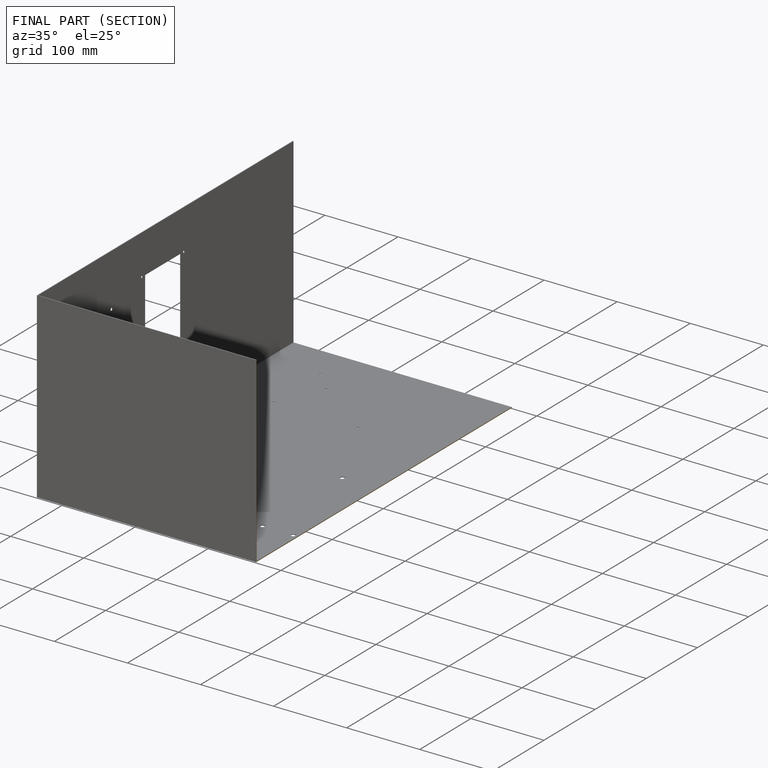
[diagram: finished part — half-section view (interior)]
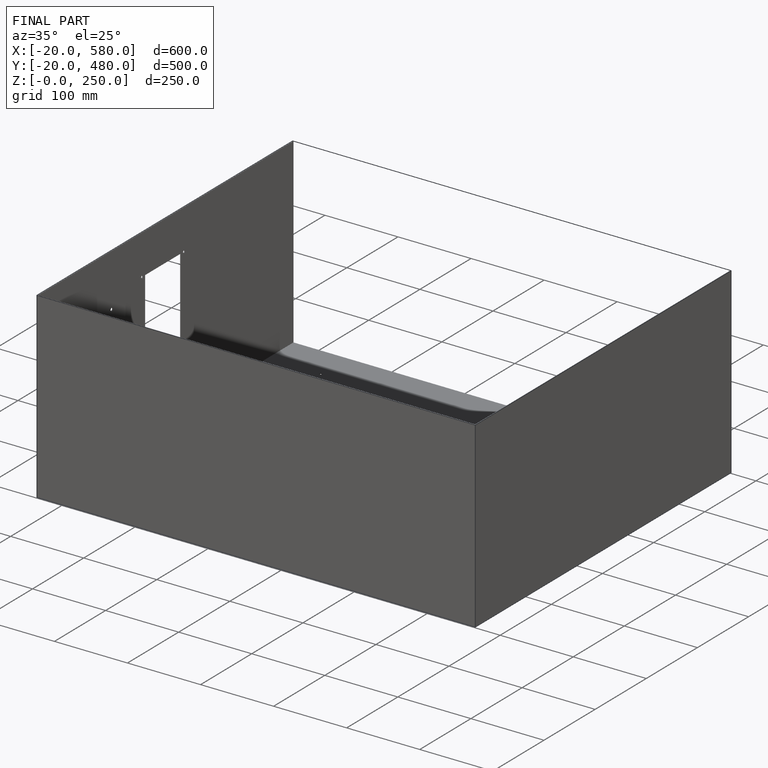
[diagram: finished part — iso view with bounding-box wireframe]
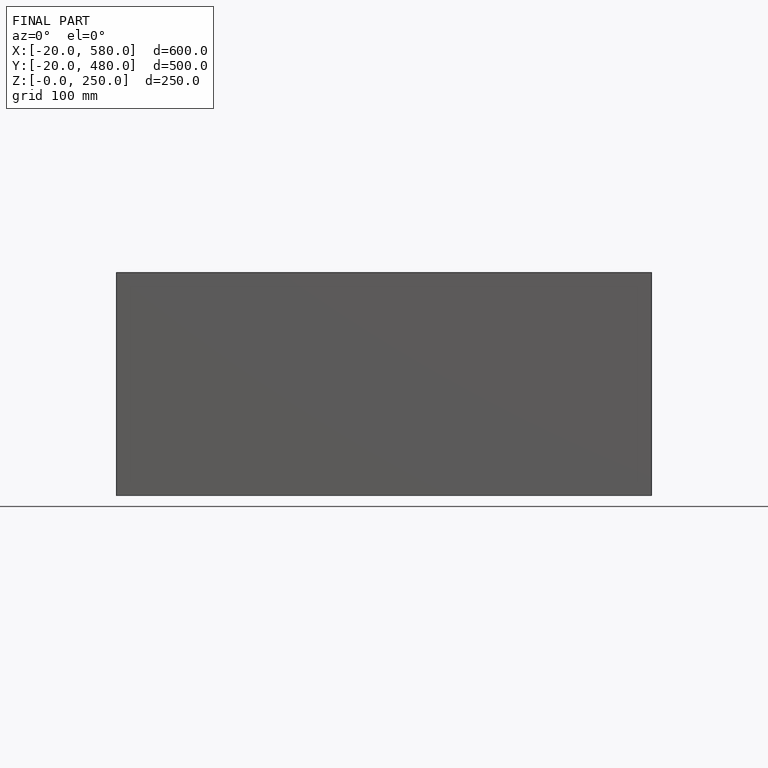
[diagram: finished part — front view with bounding-box wireframe]
